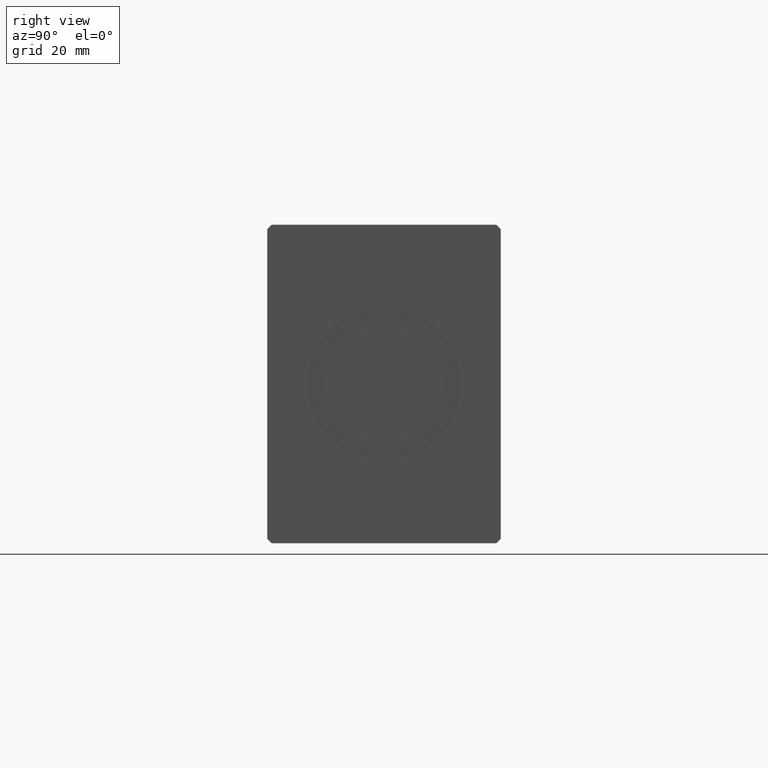
[diagram: clean part render]
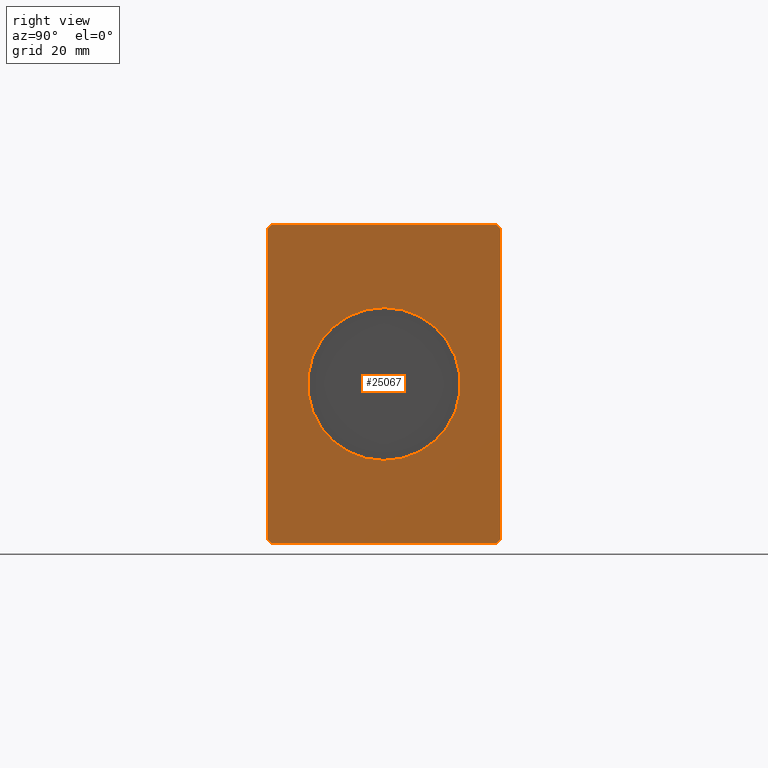
[diagram: same view with one face highlighted and labeled with its STEP entity id]
A machine part, right view. The second image highlights one B-rep face of the part: STEP entity #25067.
In plain terms, the highlighted planar face has unit normal (1, 0, 0).
Its self-contained STEP definition (entity closure, byte-faithful):
#133 = DIRECTION ( 'NONE',  ( 0.000000000000000000, 1.000000000000000000, 0.000000000000000000 ) ) ;
#311 = CARTESIAN_POINT ( 'NONE',  ( 145.0000000000000000, 26.50000000000000711, -37.49999999999999289 ) ) ;
#452 = LINE ( 'NONE', #24181, #36329 ) ;
#1047 = FACE_OUTER_BOUND ( 'NONE', #23105, .T. ) ;
#1154 = VERTEX_POINT ( 'NONE', #7491 ) ;
#1917 = CARTESIAN_POINT ( 'NONE',  ( 145.0000000000000000, -26.50000000000000711, 37.50000000000000711 ) ) ;
#2262 = CARTESIAN_POINT ( 'NONE',  ( 145.0000000000000000, 27.50000000000000711, -36.49999999999999289 ) ) ;
#2920 = LINE ( 'NONE', #17293, #28771 ) ;
#3317 = DIRECTION ( 'NONE',  ( 0.000000000000000000, 0.7071067811865474617, 0.7071067811865474617 ) ) ;
#4087 = VERTEX_POINT ( 'NONE', #23096 ) ;
#4291 = DIRECTION ( 'NONE',  ( 0.000000000000000000, -1.000000000000000000, 0.000000000000000000 ) ) ;
#5038 = VERTEX_POINT ( 'NONE', #35324 ) ;
#5833 = EDGE_CURVE ( 'NONE', #27289, #37848, #29047, .T. ) ;
#6483 = LINE ( 'NONE', #9643, #36339 ) ;
#7491 = CARTESIAN_POINT ( 'NONE',  ( 145.0000000000000000, -26.50000000000000355, -37.49999999999999289 ) ) ;
#8244 = CARTESIAN_POINT ( 'NONE',  ( 145.0000000000000000, 0.000000000000000000, 0.000000000000000000 ) ) ;
#8443 = DIRECTION ( 'NONE',  ( 1.000000000000000000, 0.000000000000000000, 0.000000000000000000 ) ) ;
#9064 = DIRECTION ( 'NONE',  ( 0.000000000000000000, -4.752667057470704875E-17, 1.000000000000000000 ) ) ;
#9246 = CARTESIAN_POINT ( 'NONE',  ( 145.0000000000000000, 0.000000000000000000, -18.00000000000000000 ) ) ;
#9263 = VERTEX_POINT ( 'NONE', #1917 ) ;
#9643 = CARTESIAN_POINT ( 'NONE',  ( 145.0000000000000000, 27.50000000000000711, -36.49999999999999289 ) ) ;
#9801 = DIRECTION ( 'NONE',  ( 0.000000000000000000, 0.000000000000000000, -1.000000000000000000 ) ) ;
#10413 = DIRECTION ( 'NONE',  ( 1.000000000000000000, 0.000000000000000000, 0.000000000000000000 ) ) ;
#11168 = LINE ( 'NONE', #35111, #38938 ) ;
#12087 = CARTESIAN_POINT ( 'NONE',  ( 145.0000000000000000, -26.50000000000000355, -37.49999999999999289 ) ) ;
#12135 = VECTOR ( 'NONE', #27846, 1000.000000000000114 ) ;
#12862 = CARTESIAN_POINT ( 'NONE',  ( 145.0000000000000000, 26.50000000000000711, -37.49999999999999289 ) ) ;
#13047 = CARTESIAN_POINT ( 'NONE',  ( 145.0000000000000000, 26.50000000000000355, 37.50000000000000711 ) ) ;
#13055 = LINE ( 'NONE', #12862, #36430 ) ;
#13364 = CIRCLE ( 'NONE', #28883, 18.00000000000000000 ) ;
#15994 = FACE_BOUND ( 'NONE', #33649, .T. ) ;
#16522 = VERTEX_POINT ( 'NONE', #2262 ) ;
#16741 = ORIENTED_EDGE ( 'NONE', *, *, #30743, .T. ) ;
#17088 = ORIENTED_EDGE ( 'NONE', *, *, #28458, .T. ) ;
#17293 = CARTESIAN_POINT ( 'NONE',  ( 145.0000000000000000, 27.50000000000000355, 36.50000000000000711 ) ) ;
#17393 = VECTOR ( 'NONE', #4291, 1000.000000000000000 ) ;
#18050 = ORIENTED_EDGE ( 'NONE', *, *, #23437, .F. ) ;
#18636 = ORIENTED_EDGE ( 'NONE', *, *, #25452, .T. ) ;
#18874 = ORIENTED_EDGE ( 'NONE', *, *, #28616, .T. ) ;
#19021 = LINE ( 'NONE', #13047, #17393 ) ;
#19168 = CARTESIAN_POINT ( 'NONE',  ( 145.0000000000000000, 0.000000000000000000, 0.000000000000000000 ) ) ;
#19917 = EDGE_CURVE ( 'NONE', #4087, #1154, #452, .T. ) ;
#20542 = CARTESIAN_POINT ( 'NONE',  ( 145.0000000000000000, -27.50000000000000711, 36.50000000000000711 ) ) ;
#20646 = EDGE_CURVE ( 'NONE', #1154, #34216, #39410, .T. ) ;
#22563 = DIRECTION ( 'NONE',  ( 0.000000000000000000, 0.000000000000000000, -1.000000000000000000 ) ) ;
#23096 = CARTESIAN_POINT ( 'NONE',  ( 145.0000000000000000, -27.50000000000000355, -36.49999999999998579 ) ) ;
#23105 = EDGE_LOOP ( 'NONE', ( #17088, #35376, #18636, #16741, #32104, #28803, #18874, #26642 ) ) ;
#23437 = EDGE_CURVE ( 'NONE', #37848, #27289, #13364, .T. ) ;
#23598 = DIRECTION ( 'NONE',  ( 0.000000000000000000, 0.000000000000000000, -1.000000000000000000 ) ) ;
#24177 = VERTEX_POINT ( 'NONE', #36750 ) ;
#24181 = CARTESIAN_POINT ( 'NONE',  ( 145.0000000000000000, -27.50000000000000355, -36.49999999999998579 ) ) ;
#25067 = ADVANCED_FACE ( 'NONE', ( #15994, #1047 ), #28564, .T. ) ;
#25156 = CARTESIAN_POINT ( 'NONE',  ( 145.0000000000000000, 0.000000000000000000, 0.000000000000000000 ) ) ;
#25452 = EDGE_CURVE ( 'NONE', #9263, #38294, #33647, .T. ) ;
#25865 = EDGE_CURVE ( 'NONE', #16522, #5038, #6483, .T. ) ;
#26642 = ORIENTED_EDGE ( 'NONE', *, *, #25865, .T. ) ;
#26790 = VECTOR ( 'NONE', #133, 1000.000000000000000 ) ;
#27289 = VERTEX_POINT ( 'NONE', #31304 ) ;
#27846 = DIRECTION ( 'NONE',  ( 0.000000000000000000, -0.7071067811865474617, -0.7071067811865474617 ) ) ;
#27952 = DIRECTION ( 'NONE',  ( 1.000000000000000000, 0.000000000000000000, 0.000000000000000000 ) ) ;
#28458 = EDGE_CURVE ( 'NONE', #5038, #24177, #2920, .T. ) ;
#28564 = PLANE ( 'NONE',  #28683 ) ;
#28616 = EDGE_CURVE ( 'NONE', #34216, #16522, #13055, .T. ) ;
#28683 = AXIS2_PLACEMENT_3D ( 'NONE', #25156, #10413, #22563 ) ;
#28771 = VECTOR ( 'NONE', #30247, 1000.000000000000114 ) ;
#28803 = ORIENTED_EDGE ( 'NONE', *, *, #20646, .T. ) ;
#28883 = AXIS2_PLACEMENT_3D ( 'NONE', #8244, #8443, #23598 ) ;
#29047 = CIRCLE ( 'NONE', #29677, 18.00000000000000000 ) ;
#29677 = AXIS2_PLACEMENT_3D ( 'NONE', #19168, #27952, #9801 ) ;
#29953 = ORIENTED_EDGE ( 'NONE', *, *, #5833, .F. ) ;
#30247 = DIRECTION ( 'NONE',  ( 0.000000000000000000, -0.7071067811865474617, 0.7071067811865474617 ) ) ;
#30743 = EDGE_CURVE ( 'NONE', #38294, #4087, #11168, .T. ) ;
#31244 = CARTESIAN_POINT ( 'NONE',  ( 145.0000000000000000, -26.50000000000000711, 37.50000000000000711 ) ) ;
#31304 = CARTESIAN_POINT ( 'NONE',  ( 145.0000000000000000, 2.204364238465235428E-15, 18.00000000000000000 ) ) ;
#32104 = ORIENTED_EDGE ( 'NONE', *, *, #19917, .T. ) ;
#32521 = DIRECTION ( 'NONE',  ( 0.000000000000000000, 4.752667057470705491E-17, -1.000000000000000000 ) ) ;
#33647 = LINE ( 'NONE', #31244, #12135 ) ;
#33649 = EDGE_LOOP ( 'NONE', ( #18050, #29953 ) ) ;
#34216 = VERTEX_POINT ( 'NONE', #311 ) ;
#34371 = EDGE_CURVE ( 'NONE', #24177, #9263, #19021, .T. ) ;
#35111 = CARTESIAN_POINT ( 'NONE',  ( 145.0000000000000000, -27.50000000000000711, 36.50000000000000711 ) ) ;
#35324 = CARTESIAN_POINT ( 'NONE',  ( 145.0000000000000000, 27.50000000000000355, 36.50000000000000711 ) ) ;
#35376 = ORIENTED_EDGE ( 'NONE', *, *, #34371, .T. ) ;
#36329 = VECTOR ( 'NONE', #36355, 1000.000000000000114 ) ;
#36339 = VECTOR ( 'NONE', #9064, 1000.000000000000000 ) ;
#36355 = DIRECTION ( 'NONE',  ( 0.000000000000000000, 0.7071067811865451302, -0.7071067811865500152 ) ) ;
#36430 = VECTOR ( 'NONE', #3317, 1000.000000000000114 ) ;
#36750 = CARTESIAN_POINT ( 'NONE',  ( 145.0000000000000000, 26.50000000000000355, 37.50000000000000711 ) ) ;
#37848 = VERTEX_POINT ( 'NONE', #9246 ) ;
#38294 = VERTEX_POINT ( 'NONE', #20542 ) ;
#38938 = VECTOR ( 'NONE', #32521, 1000.000000000000000 ) ;
#39410 = LINE ( 'NONE', #12087, #26790 ) ;